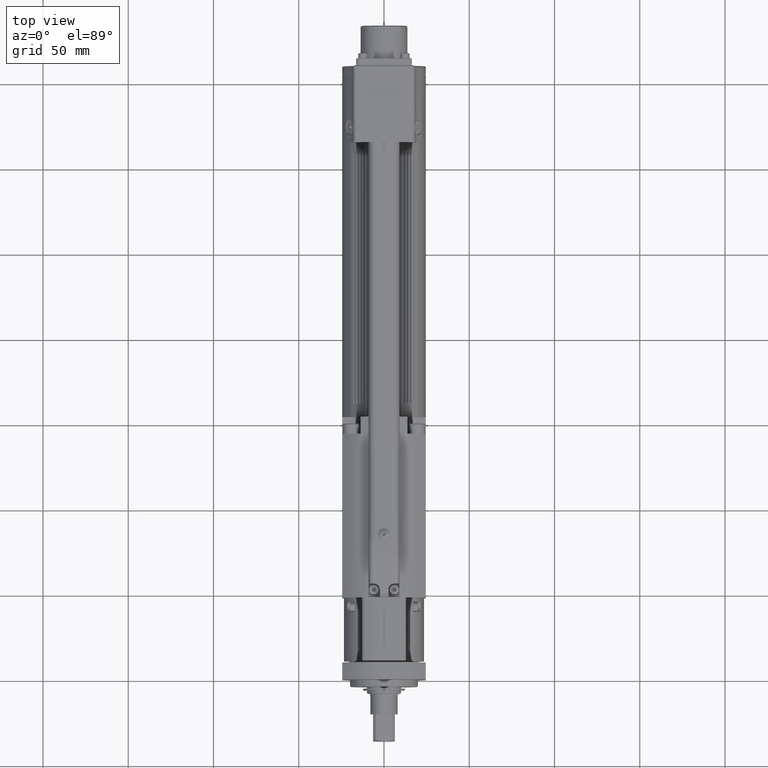
[diagram: clean part render]
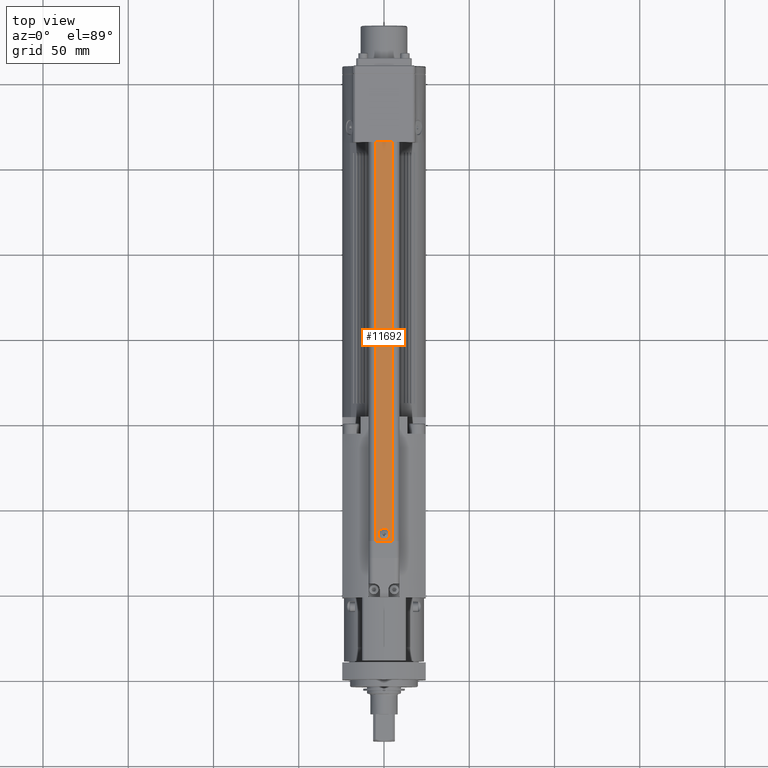
[diagram: same view with one face highlighted and labeled with its STEP entity id]
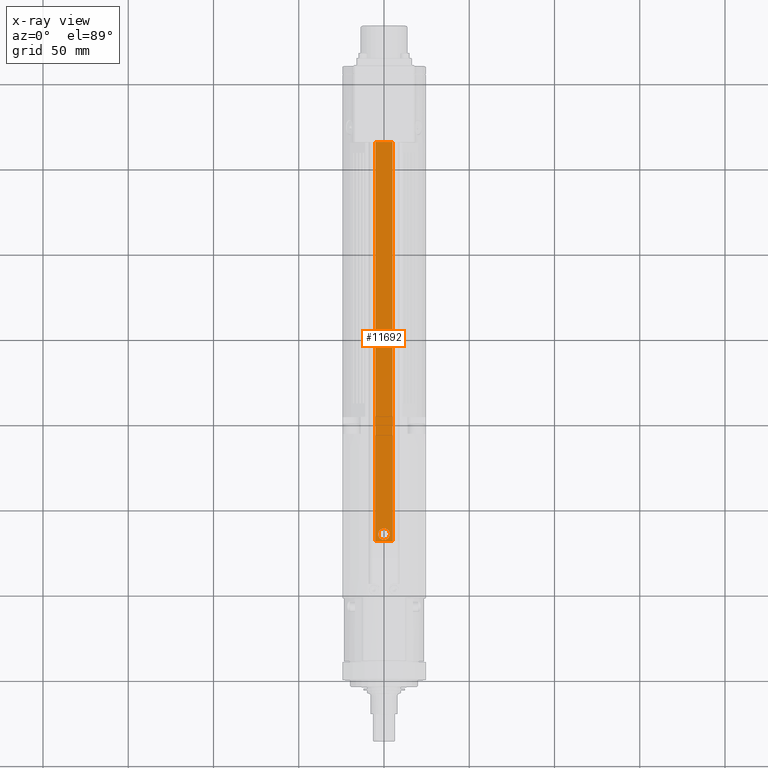
[diagram: x-ray of the same camera — body ghosted, the highlighted face saturated]
A machine part, top view. The second image highlights one B-rep face of the part: STEP entity #11692.
The next image is the same camera in x-ray: the body ghosted, the highlighted face saturated — about 0% of this face is hidden behind the body in this view.
In plain terms, the highlighted planar face has unit normal (-0, 0, 1).
Its self-contained STEP definition (entity closure, byte-faithful):
#271=FACE_BOUND('',#3803,.T.);
#396=PLANE('',#12501);
#958=LINE('',#17491,#1993);
#960=LINE('',#17495,#1995);
#961=LINE('',#17497,#1996);
#962=LINE('',#17498,#1997);
#1993=VECTOR('',#13998,10.);
#1995=VECTOR('',#14002,10.);
#1996=VECTOR('',#14003,10.);
#1997=VECTOR('',#14004,10.);
#3099=FACE_OUTER_BOUND('',#3802,.T.);
#3802=EDGE_LOOP('',(#8117,#8118,#8119,#8120));
#3803=EDGE_LOOP('',(#8121));
#4578=CIRCLE('',#12502,3.45);
#5145=VERTEX_POINT('',#17488);
#5146=VERTEX_POINT('',#17490);
#5147=VERTEX_POINT('',#17494);
#5148=VERTEX_POINT('',#17496);
#5149=VERTEX_POINT('',#17499);
#6294=EDGE_CURVE('',#5146,#5145,#958,.T.);
#6296=EDGE_CURVE('',#5146,#5147,#960,.T.);
#6297=EDGE_CURVE('',#5148,#5145,#961,.T.);
#6298=EDGE_CURVE('',#5147,#5148,#962,.T.);
#6299=EDGE_CURVE('',#5149,#5149,#4578,.T.);
#8117=ORIENTED_EDGE('',*,*,#6296,.F.);
#8118=ORIENTED_EDGE('',*,*,#6294,.T.);
#8119=ORIENTED_EDGE('',*,*,#6297,.F.);
#8120=ORIENTED_EDGE('',*,*,#6298,.F.);
#8121=ORIENTED_EDGE('',*,*,#6299,.T.);
#11692=ADVANCED_FACE('',(#3099,#271),#396,.T.);
#12501=AXIS2_PLACEMENT_3D('',#17493,#14000,#14001);
#12502=AXIS2_PLACEMENT_3D('',#17500,#14005,#14006);
#13998=DIRECTION('',(-9.25185853854297E-17,-1.,-5.66512947269538E-33));
#14000=DIRECTION('center_axis',(-6.74002456497297E-17,5.70645909448078E-34,
1.));
#14001=DIRECTION('ref_axis',(-1.,9.25185853854297E-17,-6.74002456497297E-17));
#14002=DIRECTION('',(1.,-2.38745161435432E-16,6.60466126234381E-12));
#14003=DIRECTION('',(-1.,9.25185853854297E-17,0.));
#14004=DIRECTION('',(-9.25185853854297E-17,-1.,-5.66512947269538E-33));
#14005=DIRECTION('center_axis',(6.74002456497297E-17,-5.70645909448078E-34,
-1.));
#14006=DIRECTION('ref_axis',(1.,-1.68142170577929E-17,2.01250696800941E-16));
#17488=CARTESIAN_POINT('',(-5.,81.,39.));
#17490=CARTESIAN_POINT('',(-4.99999999999998,315.,39.));
#17491=CARTESIAN_POINT('',(-4.99999999999998,316.,39.));
#17493=CARTESIAN_POINT('Origin',(5.00000000000002,316.,39.));
#17494=CARTESIAN_POINT('',(5.00000000000002,315.,39.));
#17495=CARTESIAN_POINT('',(-4.50000000026347,315.,38.9999999999647));
#17496=CARTESIAN_POINT('',(5.,81.,39.));
#17497=CARTESIAN_POINT('',(1.11022302462516E-15,81.,39.));
#17498=CARTESIAN_POINT('',(5.00000000000002,316.,39.));
#17499=CARTESIAN_POINT('',(-3.45,85.,39.0000000000001));
#17500=CARTESIAN_POINT('Origin',(-6.77391082324655E-16,85.,39.0000000000001));